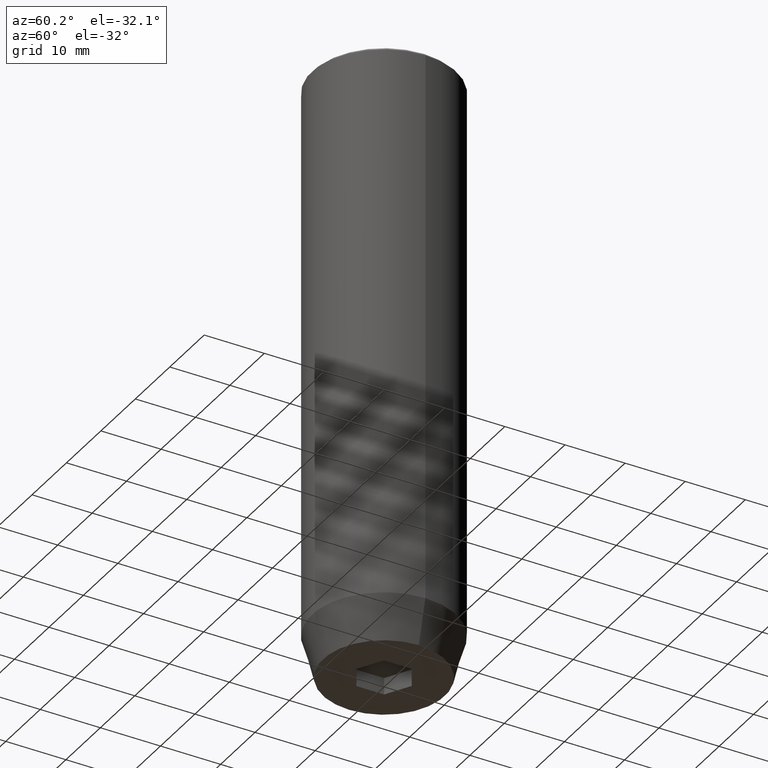
[diagram: clean part render]
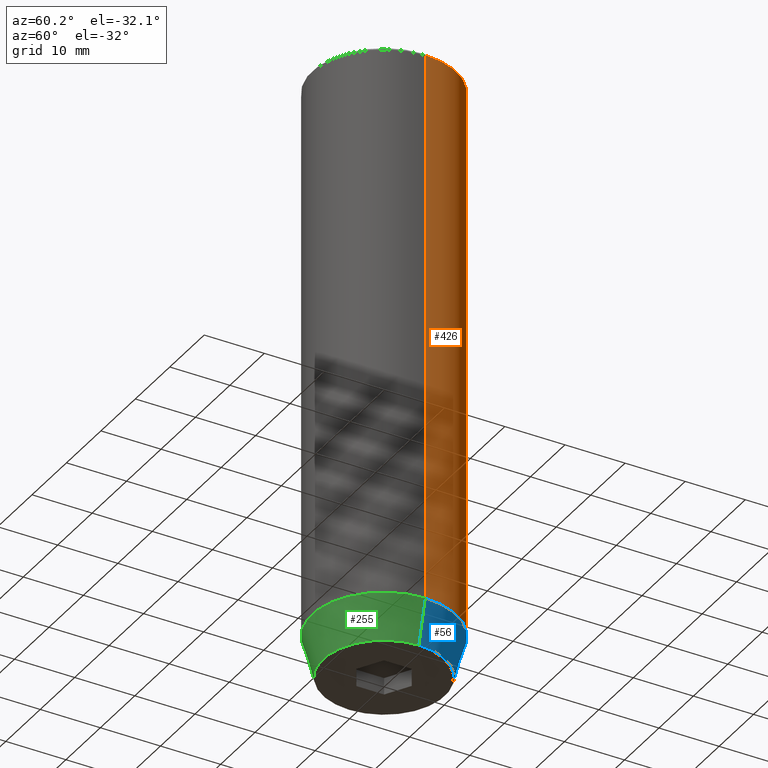
[diagram: same view with three faces highlighted in distinct colors, each labeled with its STEP entity id]
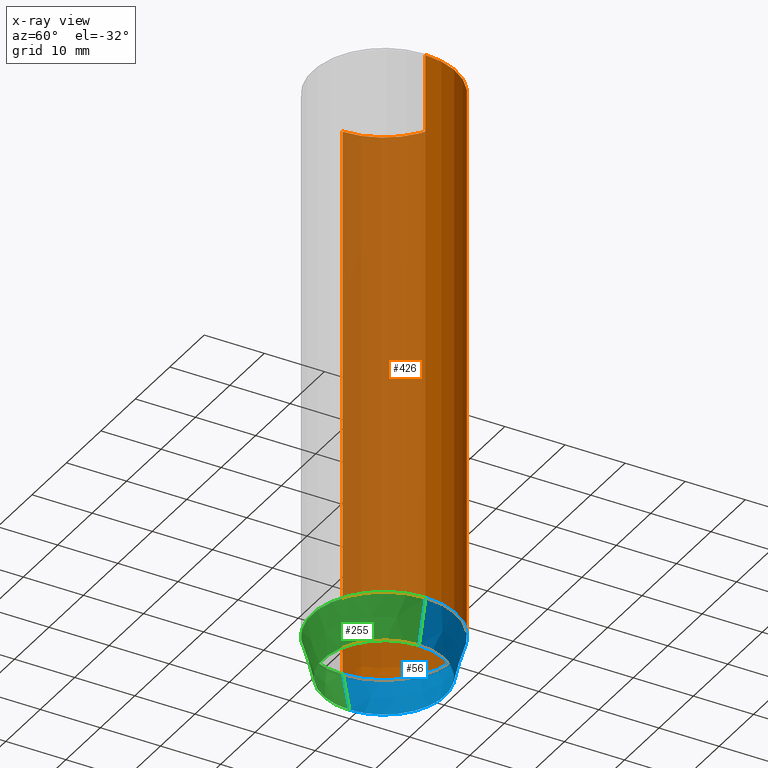
[diagram: x-ray of the same camera — body ghosted, the three highlighted faces saturated]
A machine part, auxiliary view with three faces highlighted in distinct colors.
The next image is the same camera in x-ray (body ghosted, the three faces saturated) — at least one of them is partly hidden behind the body in this view.
Their STEP definitions:

[orange] entity #426 — the highlighted cylindrical surface (partial cylindrical patch) has radius 12 mm, axis along (-0, -0, 1).
#8 = EDGE_CURVE ( 'NONE', #352, #516, #214, .T. ) ;
#9 = EDGE_LOOP ( 'NONE', ( #558, #257, #338, #163 ) ) ;
#20 = VECTOR ( 'NONE', #494, 1000.000000000000000 ) ;
#31 = EDGE_CURVE ( 'NONE', #514, #352, #52, .T. ) ;
#41 = DIRECTION ( 'NONE',  ( 0.000000000000000000, 0.000000000000000000, -1.000000000000000000 ) ) ;
#52 = CIRCLE ( 'NONE', #70, 12.00000000000000000 ) ;
#63 = CARTESIAN_POINT ( 'NONE',  ( 0.000000000000000000, 0.000000000000000000, 0.000000000000000000 ) ) ;
#70 = AXIS2_PLACEMENT_3D ( 'NONE', #358, #260, #160 ) ;
#145 = AXIS2_PLACEMENT_3D ( 'NONE', #272, #41, #417 ) ;
#160 = DIRECTION ( 'NONE',  ( 1.000000000000000000, 0.000000000000000000, 0.000000000000000000 ) ) ;
#163 = ORIENTED_EDGE ( 'NONE', *, *, #515, .F. ) ;
#193 = FACE_OUTER_BOUND ( 'NONE', #9, .T. ) ;
#214 = LINE ( 'NONE', #399, #20 ) ;
#218 = CARTESIAN_POINT ( 'NONE',  ( -12.00000000000000000, 1.469576158976823947E-15, -0.5000000000000196509 ) ) ;
#257 = ORIENTED_EDGE ( 'NONE', *, *, #8, .T. ) ;
#260 = DIRECTION ( 'NONE',  ( -0.000000000000000000, -0.000000000000000000, 1.000000000000000000 ) ) ;
#272 = CARTESIAN_POINT ( 'NONE',  ( 0.000000000000000000, 0.000000000000000000, -0.5000000000000196509 ) ) ;
#309 = EDGE_CURVE ( 'NONE', #516, #414, #517, .T. ) ;
#310 = DIRECTION ( 'NONE',  ( -0.000000000000000000, -0.000000000000000000, 1.000000000000000000 ) ) ;
#315 = AXIS2_PLACEMENT_3D ( 'NONE', #63, #393, #438 ) ;
#338 = ORIENTED_EDGE ( 'NONE', *, *, #309, .T. ) ;
#352 = VERTEX_POINT ( 'NONE', #526 ) ;
#357 = CARTESIAN_POINT ( 'NONE',  ( 12.00000000000000000, 0.000000000000000000, 0.000000000000000000 ) ) ;
#358 = CARTESIAN_POINT ( 'NONE',  ( 0.000000000000000000, 0.000000000000000000, -93.00000000000000000 ) ) ;
#393 = DIRECTION ( 'NONE',  ( -0.000000000000000000, -0.000000000000000000, 1.000000000000000000 ) ) ;
#399 = CARTESIAN_POINT ( 'NONE',  ( -12.00000000000000000, 1.469576158976823947E-15, 0.000000000000000000 ) ) ;
#414 = VERTEX_POINT ( 'NONE', #472 ) ;
#417 = DIRECTION ( 'NONE',  ( 1.000000000000000000, 0.000000000000000000, 0.000000000000000000 ) ) ;
#424 = VECTOR ( 'NONE', #310, 1000.000000000000000 ) ;
#426 = ADVANCED_FACE ( 'NONE', ( #193 ), #485, .T. ) ;
#438 = DIRECTION ( 'NONE',  ( 1.000000000000000000, 0.000000000000000000, 0.000000000000000000 ) ) ;
#472 = CARTESIAN_POINT ( 'NONE',  ( 12.00000000000000000, 0.000000000000000000, -0.5000000000000196509 ) ) ;
#485 = CYLINDRICAL_SURFACE ( 'NONE', #315, 12.00000000000000000 ) ;
#494 = DIRECTION ( 'NONE',  ( -0.000000000000000000, -0.000000000000000000, 1.000000000000000000 ) ) ;
#514 = VERTEX_POINT ( 'NONE', #582 ) ;
#515 = EDGE_CURVE ( 'NONE', #514, #414, #545, .T. ) ;
#516 = VERTEX_POINT ( 'NONE', #218 ) ;
#517 = CIRCLE ( 'NONE', #145, 12.00000000000000000 ) ;
#526 = CARTESIAN_POINT ( 'NONE',  ( -12.00000000000000000, 1.469576158976823947E-15, -93.00000000000000000 ) ) ;
#545 = LINE ( 'NONE', #357, #424 ) ;
#558 = ORIENTED_EDGE ( 'NONE', *, *, #31, .T. ) ;
#582 = CARTESIAN_POINT ( 'NONE',  ( 12.00000000000000000, 0.000000000000000000, -93.00000000000000000 ) ) ;

[blue] entity #56 — the highlighted conical surface has half-angle 15 deg.
#6 = LINE ( 'NONE', #482, #538 ) ;
#10 = ORIENTED_EDGE ( 'NONE', *, *, #31, .F. ) ;
#13 = CARTESIAN_POINT ( 'NONE',  ( -10.12435565298213547, 1.354726066681111050E-15, -100.0000000000000000 ) ) ;
#28 = DIRECTION ( 'NONE',  ( -0.000000000000000000, -0.000000000000000000, 1.000000000000000000 ) ) ;
#31 = EDGE_CURVE ( 'NONE', #514, #352, #52, .T. ) ;
#52 = CIRCLE ( 'NONE', #70, 12.00000000000000000 ) ;
#56 = ADVANCED_FACE ( 'NONE', ( #536 ), #306, .T. ) ;
#70 = AXIS2_PLACEMENT_3D ( 'NONE', #358, #260, #160 ) ;
#72 = CARTESIAN_POINT ( 'NONE',  ( 10.12435565298213547, 0.000000000000000000, -100.0000000000000000 ) ) ;
#100 = DIRECTION ( 'NONE',  ( -0.2588190451025213501, 3.169619151431772337E-17, 0.9659258262890680902 ) ) ;
#160 = DIRECTION ( 'NONE',  ( 1.000000000000000000, 0.000000000000000000, 0.000000000000000000 ) ) ;
#162 = DIRECTION ( 'NONE',  ( 1.000000000000000000, 0.000000000000000000, 0.000000000000000000 ) ) ;
#170 = CARTESIAN_POINT ( 'NONE',  ( 0.000000000000000000, 0.000000000000000000, -93.00000000000000000 ) ) ;
#176 = CARTESIAN_POINT ( 'NONE',  ( 0.000000000000000000, 0.000000000000000000, -100.0000000000000000 ) ) ;
#210 = AXIS2_PLACEMENT_3D ( 'NONE', #170, #28, #162 ) ;
#213 = CARTESIAN_POINT ( 'NONE',  ( -12.00000000000000000, 1.469576158976823947E-15, -93.00000000000000000 ) ) ;
#232 = ORIENTED_EDGE ( 'NONE', *, *, #391, .F. ) ;
#241 = CIRCLE ( 'NONE', #573, 10.12435565298213547 ) ;
#244 = ORIENTED_EDGE ( 'NONE', *, *, #277, .T. ) ;
#260 = DIRECTION ( 'NONE',  ( -0.000000000000000000, -0.000000000000000000, 1.000000000000000000 ) ) ;
#277 = EDGE_CURVE ( 'NONE', #371, #474, #241, .T. ) ;
#282 = ORIENTED_EDGE ( 'NONE', *, *, #429, .T. ) ;
#306 = CONICAL_SURFACE ( 'NONE', #210, 12.00000000000000000, 0.2617993877991500740 ) ;
#345 = LINE ( 'NONE', #213, #382 ) ;
#352 = VERTEX_POINT ( 'NONE', #526 ) ;
#358 = CARTESIAN_POINT ( 'NONE',  ( 0.000000000000000000, 0.000000000000000000, -93.00000000000000000 ) ) ;
#365 = DIRECTION ( 'NONE',  ( -0.000000000000000000, -0.000000000000000000, 1.000000000000000000 ) ) ;
#371 = VERTEX_POINT ( 'NONE', #72 ) ;
#379 = DIRECTION ( 'NONE',  ( 0.2588190451025213501, 0.000000000000000000, 0.9659258262890680902 ) ) ;
#382 = VECTOR ( 'NONE', #100, 1000.000000000000000 ) ;
#391 = EDGE_CURVE ( 'NONE', #371, #514, #6, .T. ) ;
#429 = EDGE_CURVE ( 'NONE', #474, #352, #345, .T. ) ;
#468 = EDGE_LOOP ( 'NONE', ( #244, #282, #10, #232 ) ) ;
#474 = VERTEX_POINT ( 'NONE', #13 ) ;
#482 = CARTESIAN_POINT ( 'NONE',  ( 12.00000000000000000, 0.000000000000000000, -93.00000000000000000 ) ) ;
#514 = VERTEX_POINT ( 'NONE', #582 ) ;
#526 = CARTESIAN_POINT ( 'NONE',  ( -12.00000000000000000, 1.469576158976823947E-15, -93.00000000000000000 ) ) ;
#536 = FACE_OUTER_BOUND ( 'NONE', #468, .T. ) ;
#538 = VECTOR ( 'NONE', #379, 1000.000000000000000 ) ;
#547 = DIRECTION ( 'NONE',  ( 1.000000000000000000, 0.000000000000000000, 0.000000000000000000 ) ) ;
#573 = AXIS2_PLACEMENT_3D ( 'NONE', #176, #365, #547 ) ;
#582 = CARTESIAN_POINT ( 'NONE',  ( 12.00000000000000000, 0.000000000000000000, -93.00000000000000000 ) ) ;

[green] entity #255 — the highlighted conical surface has half-angle 15 deg.
#6 = LINE ( 'NONE', #482, #538 ) ;
#7 = ORIENTED_EDGE ( 'NONE', *, *, #391, .T. ) ;
#13 = CARTESIAN_POINT ( 'NONE',  ( -10.12435565298213547, 1.354726066681111050E-15, -100.0000000000000000 ) ) ;
#21 = AXIS2_PLACEMENT_3D ( 'NONE', #459, #546, #550 ) ;
#72 = CARTESIAN_POINT ( 'NONE',  ( 10.12435565298213547, 0.000000000000000000, -100.0000000000000000 ) ) ;
#89 = AXIS2_PLACEMENT_3D ( 'NONE', #543, #278, #420 ) ;
#91 = DIRECTION ( 'NONE',  ( 1.000000000000000000, 0.000000000000000000, 0.000000000000000000 ) ) ;
#100 = DIRECTION ( 'NONE',  ( -0.2588190451025213501, 3.169619151431772337E-17, 0.9659258262890680902 ) ) ;
#110 = ORIENTED_EDGE ( 'NONE', *, *, #284, .F. ) ;
#167 = CIRCLE ( 'NONE', #21, 12.00000000000000000 ) ;
#190 = CIRCLE ( 'NONE', #265, 10.12435565298213547 ) ;
#213 = CARTESIAN_POINT ( 'NONE',  ( -12.00000000000000000, 1.469576158976823947E-15, -93.00000000000000000 ) ) ;
#222 = EDGE_CURVE ( 'NONE', #474, #371, #190, .T. ) ;
#251 = CONICAL_SURFACE ( 'NONE', #89, 12.00000000000000000, 0.2617993877991500740 ) ;
#255 = ADVANCED_FACE ( 'NONE', ( #408 ), #251, .T. ) ;
#265 = AXIS2_PLACEMENT_3D ( 'NONE', #497, #367, #91 ) ;
#278 = DIRECTION ( 'NONE',  ( -0.000000000000000000, -0.000000000000000000, 1.000000000000000000 ) ) ;
#284 = EDGE_CURVE ( 'NONE', #352, #514, #167, .T. ) ;
#345 = LINE ( 'NONE', #213, #382 ) ;
#352 = VERTEX_POINT ( 'NONE', #526 ) ;
#367 = DIRECTION ( 'NONE',  ( -0.000000000000000000, -0.000000000000000000, 1.000000000000000000 ) ) ;
#371 = VERTEX_POINT ( 'NONE', #72 ) ;
#379 = DIRECTION ( 'NONE',  ( 0.2588190451025213501, 0.000000000000000000, 0.9659258262890680902 ) ) ;
#382 = VECTOR ( 'NONE', #100, 1000.000000000000000 ) ;
#391 = EDGE_CURVE ( 'NONE', #371, #514, #6, .T. ) ;
#408 = FACE_OUTER_BOUND ( 'NONE', #428, .T. ) ;
#420 = DIRECTION ( 'NONE',  ( 1.000000000000000000, 0.000000000000000000, 0.000000000000000000 ) ) ;
#428 = EDGE_LOOP ( 'NONE', ( #564, #587, #7, #110 ) ) ;
#429 = EDGE_CURVE ( 'NONE', #474, #352, #345, .T. ) ;
#459 = CARTESIAN_POINT ( 'NONE',  ( 0.000000000000000000, 0.000000000000000000, -93.00000000000000000 ) ) ;
#474 = VERTEX_POINT ( 'NONE', #13 ) ;
#482 = CARTESIAN_POINT ( 'NONE',  ( 12.00000000000000000, 0.000000000000000000, -93.00000000000000000 ) ) ;
#497 = CARTESIAN_POINT ( 'NONE',  ( 0.000000000000000000, 0.000000000000000000, -100.0000000000000000 ) ) ;
#514 = VERTEX_POINT ( 'NONE', #582 ) ;
#526 = CARTESIAN_POINT ( 'NONE',  ( -12.00000000000000000, 1.469576158976823947E-15, -93.00000000000000000 ) ) ;
#538 = VECTOR ( 'NONE', #379, 1000.000000000000000 ) ;
#543 = CARTESIAN_POINT ( 'NONE',  ( 0.000000000000000000, 0.000000000000000000, -93.00000000000000000 ) ) ;
#546 = DIRECTION ( 'NONE',  ( -0.000000000000000000, -0.000000000000000000, 1.000000000000000000 ) ) ;
#550 = DIRECTION ( 'NONE',  ( 1.000000000000000000, 0.000000000000000000, 0.000000000000000000 ) ) ;
#564 = ORIENTED_EDGE ( 'NONE', *, *, #429, .F. ) ;
#582 = CARTESIAN_POINT ( 'NONE',  ( 12.00000000000000000, 0.000000000000000000, -93.00000000000000000 ) ) ;
#587 = ORIENTED_EDGE ( 'NONE', *, *, #222, .T. ) ;